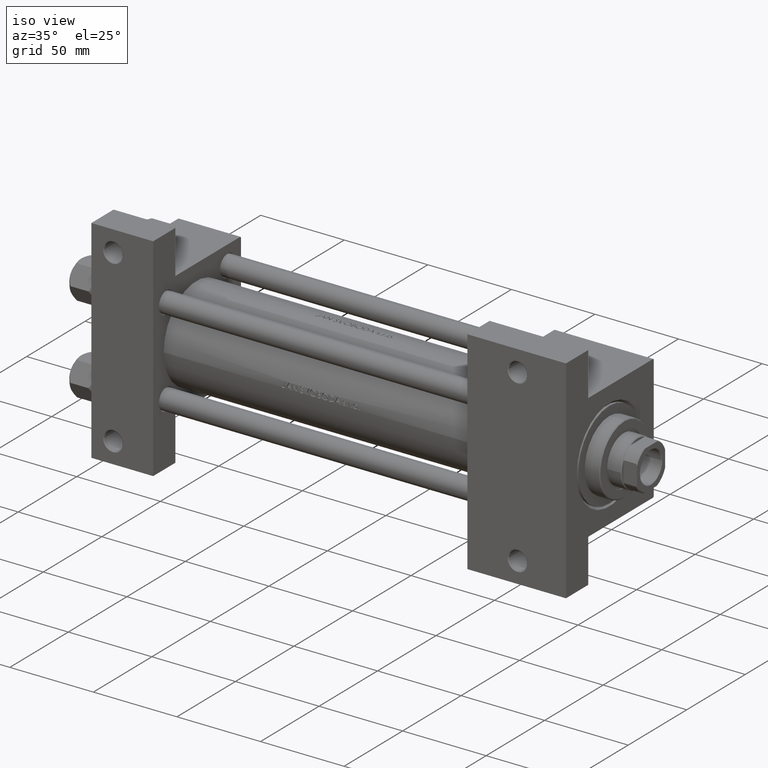
[diagram: clean part render]
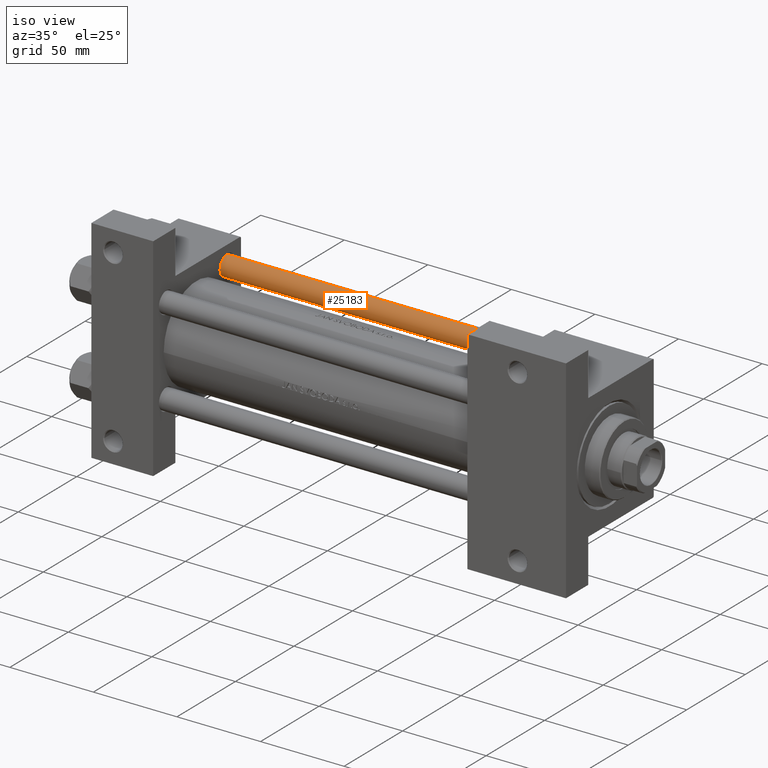
[diagram: same view with one face highlighted and labeled with its STEP entity id]
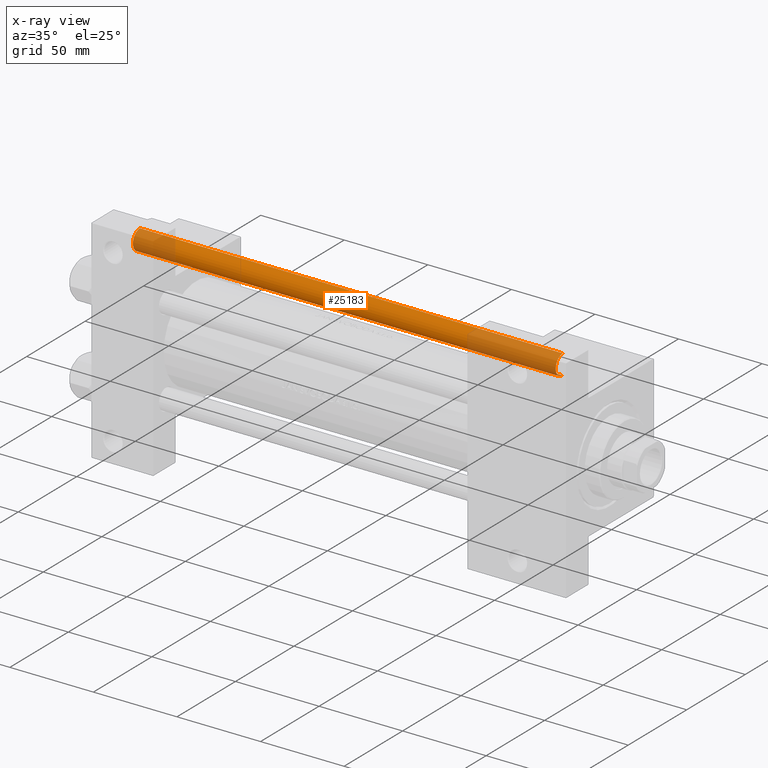
[diagram: x-ray of the same camera — body ghosted, the highlighted face saturated]
A machine part, iso view. The second image highlights one B-rep face of the part: STEP entity #25183.
The next image is the same camera in x-ray: the body ghosted, the highlighted face saturated — about 31% of this face is hidden behind the body in this view.
In plain terms, the highlighted cylindrical surface (edge-blend (fillet) strip) has radius 6 mm, axis along (-1, -0, -0).
Its self-contained STEP definition (entity closure, byte-faithful):
#2631 = AXIS2_PLACEMENT_3D ( 'NONE', #38497, #11997, #11502 ) ;
#4065 = EDGE_LOOP ( 'NONE', ( #11851, #27693, #24966, #24160 ) ) ;
#4310 = FACE_OUTER_BOUND ( 'NONE', #4065, .T. ) ;
#4804 = VERTEX_POINT ( 'NONE', #42689 ) ;
#5804 = VERTEX_POINT ( 'NONE', #32767 ) ;
#7159 = DIRECTION ( 'NONE',  ( -0.000000000000000000, -0.000000000000000000, 1.000000000000000000 ) ) ;
#10478 = VECTOR ( 'NONE', #26566, 1000.000000000000000 ) ;
#11502 = DIRECTION ( 'NONE',  ( -1.000000000000000000, 0.000000000000000000, 0.000000000000000000 ) ) ;
#11851 = ORIENTED_EDGE ( 'NONE', *, *, #42294, .F. ) ;
#11989 = EDGE_CURVE ( 'NONE', #4804, #5804, #45913, .T. ) ;
#11997 = DIRECTION ( 'NONE',  ( -0.000000000000000000, -0.000000000000000000, -1.000000000000000000 ) ) ;
#12433 = VECTOR ( 'NONE', #27059, 1000.000000000000000 ) ;
#12662 = AXIS2_PLACEMENT_3D ( 'NONE', #25812, #33269, #40927 ) ;
#12842 = CIRCLE ( 'NONE', #27863, 6.000000000000000888 ) ;
#15666 = CARTESIAN_POINT ( 'NONE',  ( 6.000000000000000888, 7.347880794884120722E-16, 254.0000000000000000 ) ) ;
#22648 = EDGE_CURVE ( 'NONE', #5804, #34001, #27057, .T. ) ;
#23273 = EDGE_CURVE ( 'NONE', #34001, #32591, #12842, .T. ) ;
#24160 = ORIENTED_EDGE ( 'NONE', *, *, #23273, .T. ) ;
#24966 = ORIENTED_EDGE ( 'NONE', *, *, #22648, .T. ) ;
#25183 = ADVANCED_FACE ( 'NONE', ( #4310 ), #46428, .T. ) ;
#25812 = CARTESIAN_POINT ( 'NONE',  ( 0.000000000000000000, 0.000000000000000000, 253.5000000000000568 ) ) ;
#26566 = DIRECTION ( 'NONE',  ( -0.000000000000000000, -0.000000000000000000, -1.000000000000000000 ) ) ;
#27057 = LINE ( 'NONE', #42189, #10478 ) ;
#27059 = DIRECTION ( 'NONE',  ( -0.000000000000000000, -0.000000000000000000, -1.000000000000000000 ) ) ;
#27610 = CARTESIAN_POINT ( 'NONE',  ( -6.000000000000000888, 0.000000000000000000, 0.5000000000000004441 ) ) ;
#27693 = ORIENTED_EDGE ( 'NONE', *, *, #11989, .T. ) ;
#27863 = AXIS2_PLACEMENT_3D ( 'NONE', #33920, #7159, #37388 ) ;
#32591 = VERTEX_POINT ( 'NONE', #42358 ) ;
#32767 = CARTESIAN_POINT ( 'NONE',  ( -6.000000000000000888, 0.000000000000000000, 253.5000000000000568 ) ) ;
#33269 = DIRECTION ( 'NONE',  ( 0.000000000000000000, 0.000000000000000000, -1.000000000000000000 ) ) ;
#33920 = CARTESIAN_POINT ( 'NONE',  ( 0.000000000000000000, 0.000000000000000000, 0.5000000000000004441 ) ) ;
#34001 = VERTEX_POINT ( 'NONE', #27610 ) ;
#36406 = LINE ( 'NONE', #15666, #12433 ) ;
#37388 = DIRECTION ( 'NONE',  ( 1.000000000000000000, 0.000000000000000000, 0.000000000000000000 ) ) ;
#38497 = CARTESIAN_POINT ( 'NONE',  ( 0.000000000000000000, 0.000000000000000000, 254.0000000000000000 ) ) ;
#40927 = DIRECTION ( 'NONE',  ( 1.000000000000000000, 0.000000000000000000, 0.000000000000000000 ) ) ;
#42189 = CARTESIAN_POINT ( 'NONE',  ( -6.000000000000000888, 0.000000000000000000, 254.0000000000000000 ) ) ;
#42294 = EDGE_CURVE ( 'NONE', #4804, #32591, #36406, .T. ) ;
#42358 = CARTESIAN_POINT ( 'NONE',  ( 6.000000000000000888, 7.347880794884120722E-16, 0.5000000000000004441 ) ) ;
#42689 = CARTESIAN_POINT ( 'NONE',  ( 6.000000000000000888, 7.347880794884120722E-16, 253.5000000000000568 ) ) ;
#45913 = CIRCLE ( 'NONE', #12662, 6.000000000000000888 ) ;
#46428 = CYLINDRICAL_SURFACE ( 'NONE', #2631, 6.000000000000000888 ) ;